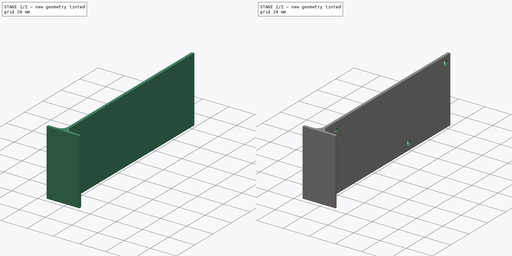
[diagram: build sequence overview — one tinted view per stage of 2, left to right]
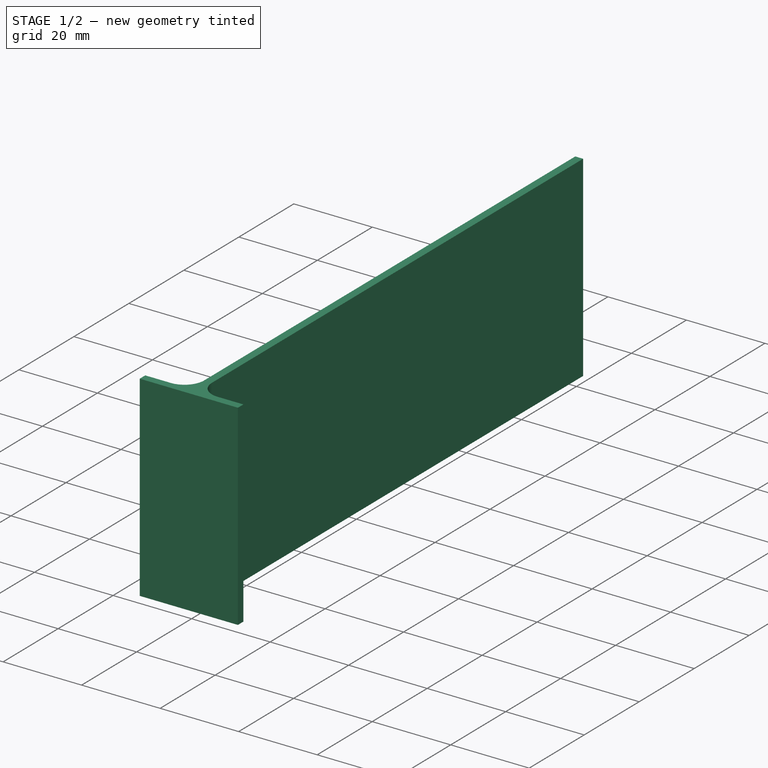
[diagram: stage 1 of 2 — iso view after this stage's code; geometry added in this stage tinted green]
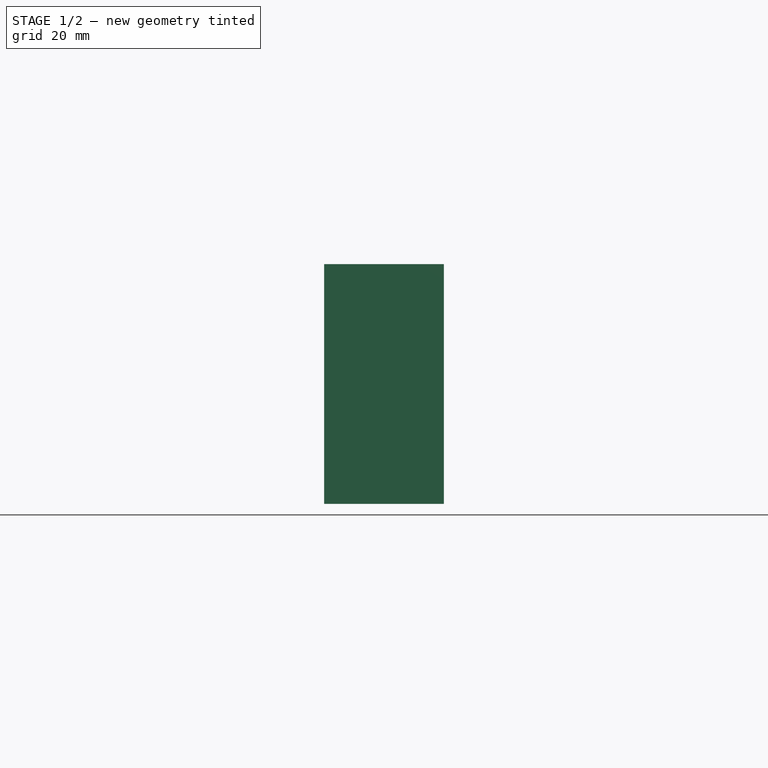
[diagram: stage 1 of 2 — front view after this stage's code; geometry added in this stage tinted green]
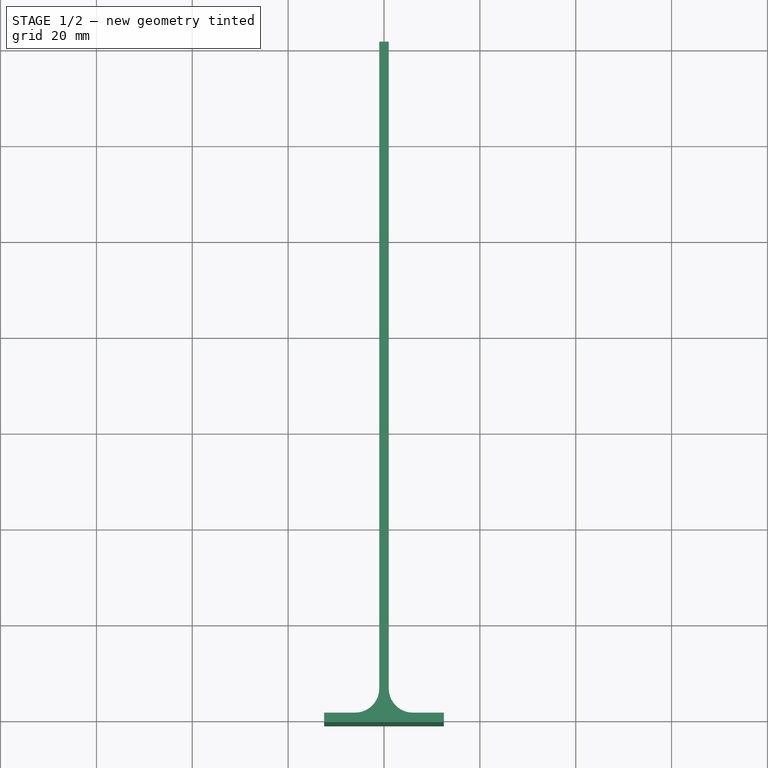
[diagram: stage 1 of 2 — top view after this stage's code; geometry added in this stage tinted green]
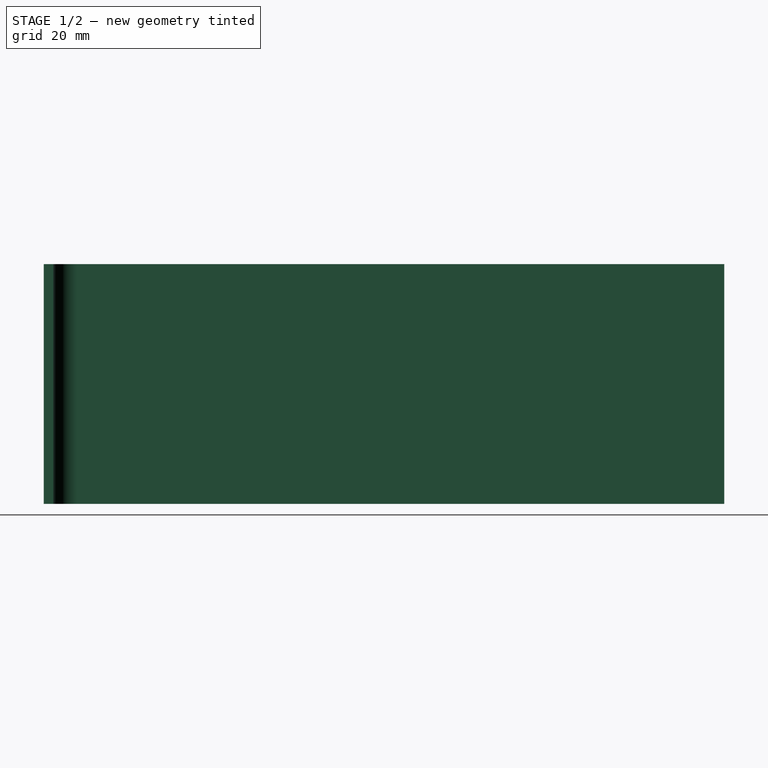
[diagram: stage 1 of 2 — right view after this stage's code; geometry added in this stage tinted green]
FCSTD DOCUMENT  (FreeCAD 2022.111R30764 (Git))
Label: door opener beam sensor stand
License: All rights reserved
LicenseURL: http://en.wikipedia.org/wiki/All_rights_reserved
objects: Sketcher::SketchObject×2, PartDesign::Fillet×2, PartDesign::Pad×1, PartDesign::Pocket×1, PartDesign::Body×1
note: 15 computed .brp shape members not serialized (recipe doc carries the construction recipe); baked Part::Feature solids carry a one-line shape summary decoded from their .brp

FEATURE [Sketcher::SketchObject] Sketch
  FullyConstrained = true
  MapMode = 5
  Support = -> [XY_Plane]
  TreeRank = 11
  sketch-geometry (8):
    g0: LineSegment StartX=-12.5 StartY=1 StartZ=0 EndX=-12.5 EndY=-1 EndZ=0
    g1: LineSegment StartX=-12.5 StartY=-1 StartZ=0 EndX=12.5 EndY=-1 EndZ=0
    g2: LineSegment StartX=12.5 StartY=-1 StartZ=0 EndX=12.5 EndY=1 EndZ=0
    g3: LineSegment StartX=12.5 StartY=1 StartZ=0 EndX=1 EndY=1 EndZ=0
    g4: LineSegment StartX=1 StartY=1 StartZ=0 EndX=1 EndY=141 EndZ=0
    g5: LineSegment StartX=1 StartY=141 StartZ=0 EndX=-1 EndY=141 EndZ=0
    g6: LineSegment StartX=-1 StartY=141 StartZ=0 EndX=-1 EndY=1 EndZ=0
    g7: LineSegment StartX=-1 StartY=1 StartZ=0 EndX=-12.5 EndY=1 EndZ=0
  constraints (21):
    c: Coincident(g0,g1)
    c: Horizontal(g1)
    c: Coincident(g1,g2)
    c: Vertical(g2)
    c: Coincident(g2,g3)
    c: Horizontal(g3)
    c: Coincident(g3,g4)
    c: Vertical(g4)
    c: Coincident(g4,g5)
    c: Coincident(g5,g6)
    c: Vertical(g6)
    c: Coincident(g6,g7)
    c: Coincident(g7,g0)
    c: Horizontal(g7)
    c: Symmetric(g5,g4,g-2)
    c: Symmetric(g0,g2,g-2)
    c: Symmetric(g0,g0,g-1)
    c: DistanceY(g0,g0) = 2
    c: DistanceX(g5,g5) = 2
    c: DistanceX(g1,g1) = 25
    c: DistanceY(g6,g6) = 140
FEATURE [PartDesign::Pad] Pad
  AddSubType = 0
  AlongSketchNormal = false
  CheckUpToFaceLimits = true
  ClaimChildren = false
  Direction = (0,0,1)
  Fit = 0
  FitJoin = 0
  InnerFit = 0
  InnerFitJoin = 0
  InnerTaperAngle = 0
  InnerTaperAngleRev = 0
  Length = 50
  Length2 = 100
  Linearize = true
  Midplane = true
  NewSolid = false
  Profile = -> Sketch
  Suppress = false
  TreeRank = 12
  Type = 0
  _ProfileBasedVersion = 1
FEATURE [PartDesign::Fillet] Fillet
  AddSubType = 0
  Base = -> Pad [Edge20,Edge11]
  BaseFeature = -> Pad
  NewSolid = false
  Radius = 5
  SupportTransform = false
  Suppress = false
  TreeRank = 13
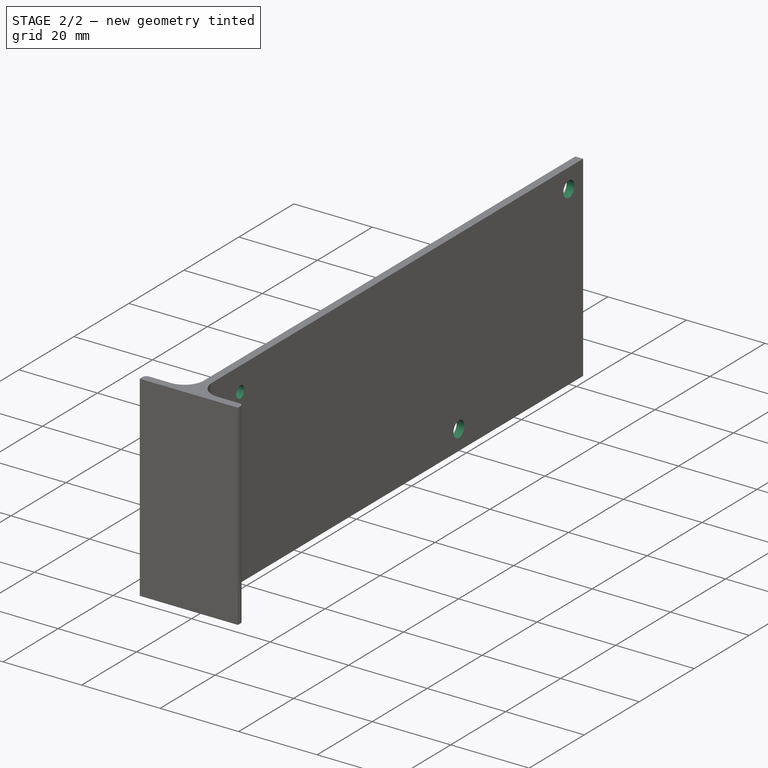
[diagram: stage 2 of 2 — iso view after this stage's code; geometry added in this stage tinted green]
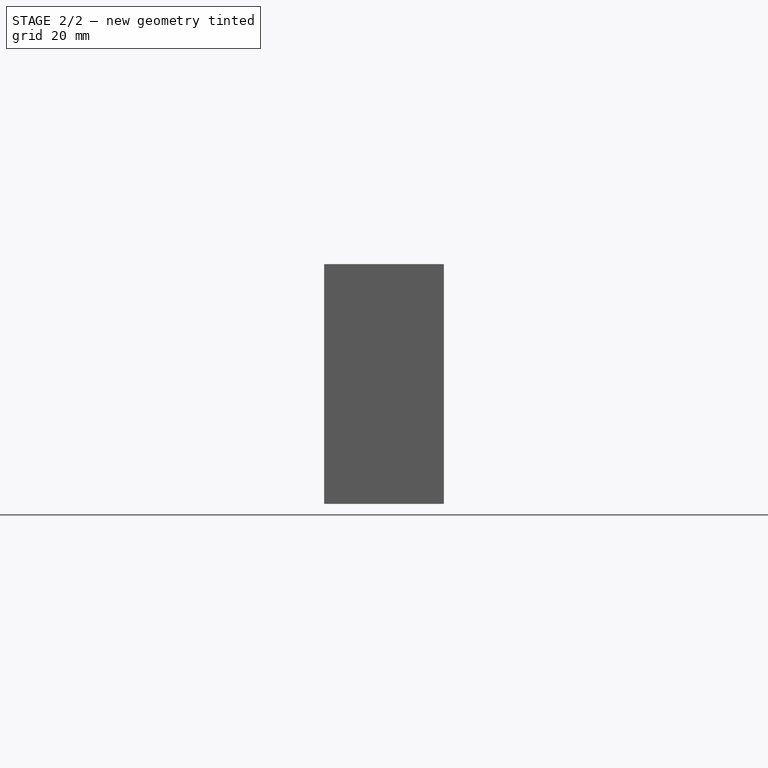
[diagram: stage 2 of 2 — front view after this stage's code; geometry added in this stage tinted green]
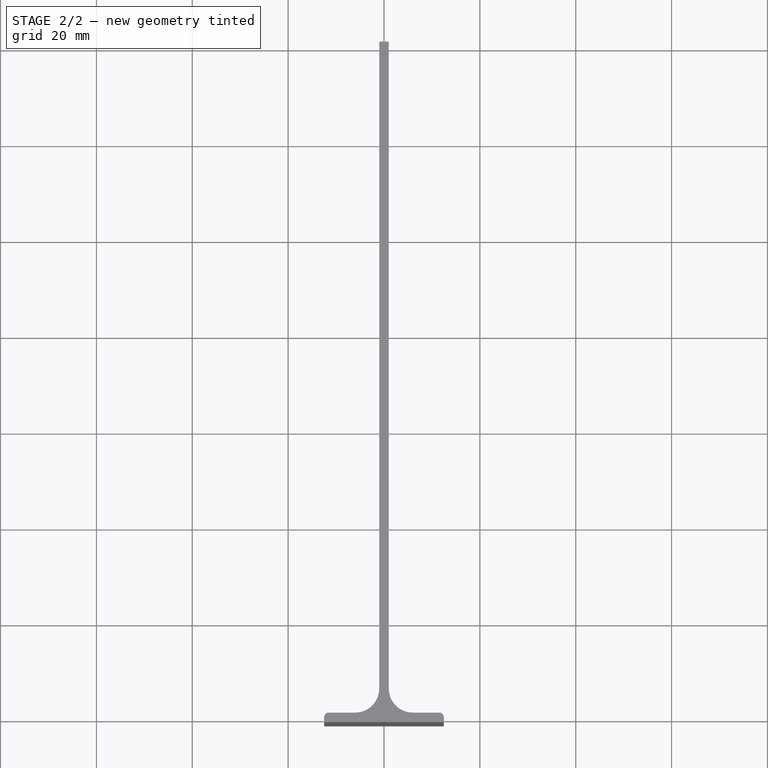
[diagram: stage 2 of 2 — top view after this stage's code; geometry added in this stage tinted green]
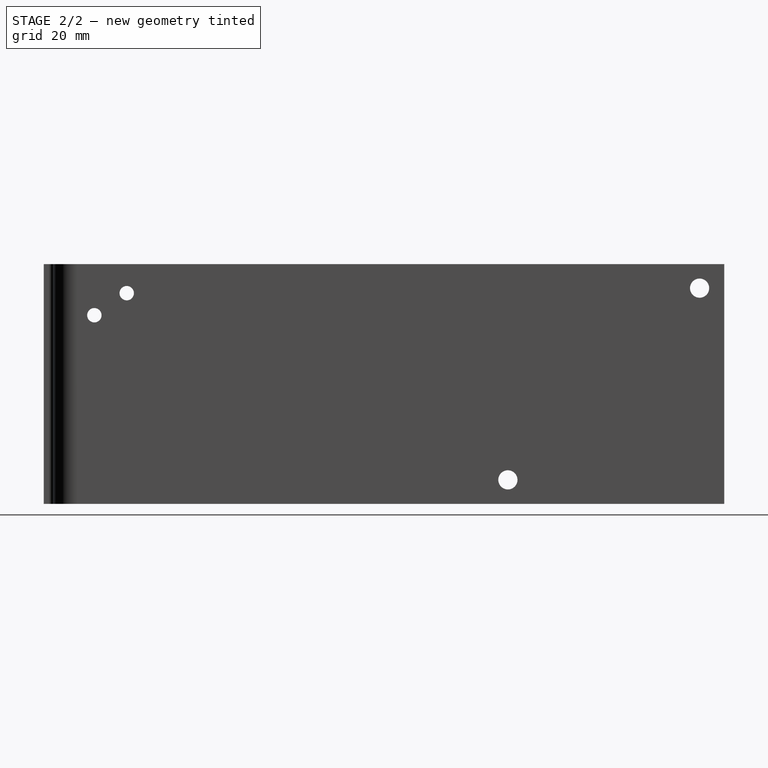
[diagram: stage 2 of 2 — right view after this stage's code; geometry added in this stage tinted green]
FEATURE [Sketcher::SketchObject] Sketch001
  FullyConstrained = false
  MapMode = 5
  Placement = pos=(0,0,0) rot=(0.57735,0.57735,0.57735;2.0944rad)
  Support = -> [YZ_Plane]
  TreeRank = 14
  sketch-geometry (5):
    g0: Circle CenterX=135.848 CenterY=20 CenterZ=0 NormalX=0 NormalY=0 NormalZ=1 AngleXU=0 Radius=2
    g1: Circle CenterX=95.848 CenterY=-20 CenterZ=0 NormalX=0 NormalY=0 NormalZ=1 AngleXU=0 Radius=2
    g2: GeomPoint [constr] X=115.848 Y=0 Z=0
    g3: Circle CenterX=9.56741 CenterY=14.3462 CenterZ=0 NormalX=0 NormalY=0 NormalZ=1 AngleXU=0 Radius=1.5
    g4: Circle CenterX=16.3227 CenterY=18.952 CenterZ=0 NormalX=0 NormalY=0 NormalZ=1 AngleXU=0 Radius=1.5
  constraints (8):
    c: Diameter(g0) = 4
    c: PointOnObject(g2,g-1)
    c: Symmetric(g1,g0,g2)
    c: DistanceY(g1,g0) = 40
    c: DistanceX(g1,g0) = 40
    c: Equal(g0,g1)
    c: Equal(g4,g3)
    c: Diameter(g4) = 3
FEATURE [PartDesign::Pocket] Pocket
  AddSubType = 1
  BaseFeature = -> Fillet
  CheckUpToFaceLimits = true
  ClaimChildren = false
  Fit = 0
  FitJoin = 0
  InnerFit = 0
  InnerFitJoin = 0
  InnerTaperAngle = 0
  InnerTaperAngleRev = 0
  Length = 5
  Length2 = 100
  Linearize = true
  Midplane = true
  NewSolid = false
  Profile = -> Sketch001
  Suppress = false
  TreeRank = 15
  Type = 1
  _ProfileBasedVersion = 1
  _Version = 1
FEATURE [PartDesign::Fillet] Fillet001
  AddSubType = 0
  Base = -> Pocket [Edge32,Edge3]
  BaseFeature = -> Pocket
  NewSolid = false
  Radius = 1
  SupportTransform = false
  Suppress = false
  TreeRank = 16
FEATURE [PartDesign::Body] Body
  AutoGroupSolids = false
  ExportMode = 0
  Group = -> [Sketch,Pad,Fillet,Sketch001,Pocket,Fillet001]
  Origin = -> Origin
  Placement = pos=(0,0,0) rot=(0,1,0;4.71239rad)
  Tip = -> Fillet001
  TreeRank = 10
  _ExportChildren = -> [Pad,Fillet,Pocket,Fillet001]
  _GroupVersion = 1
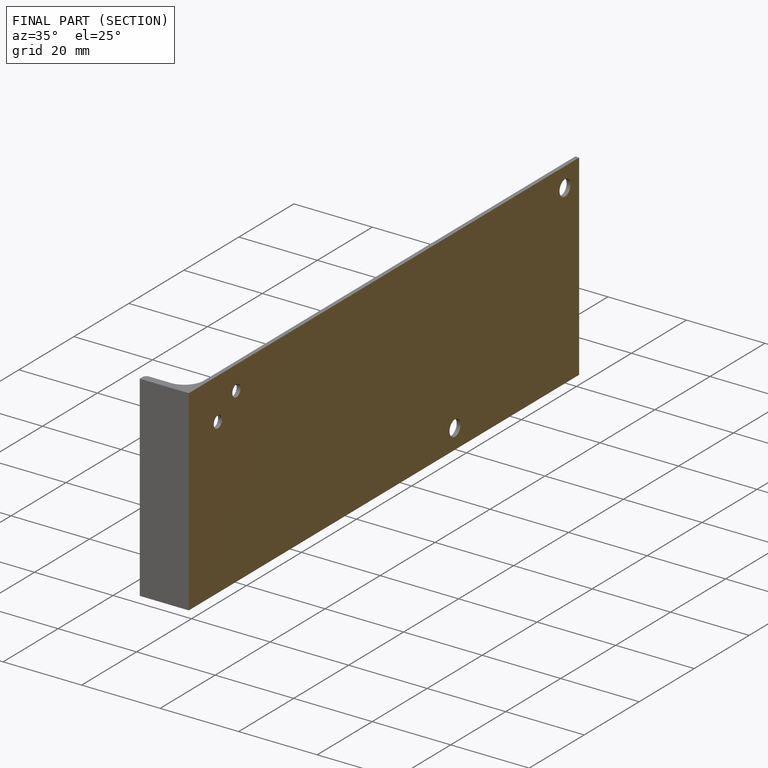
[diagram: finished part — half-section view (interior)]
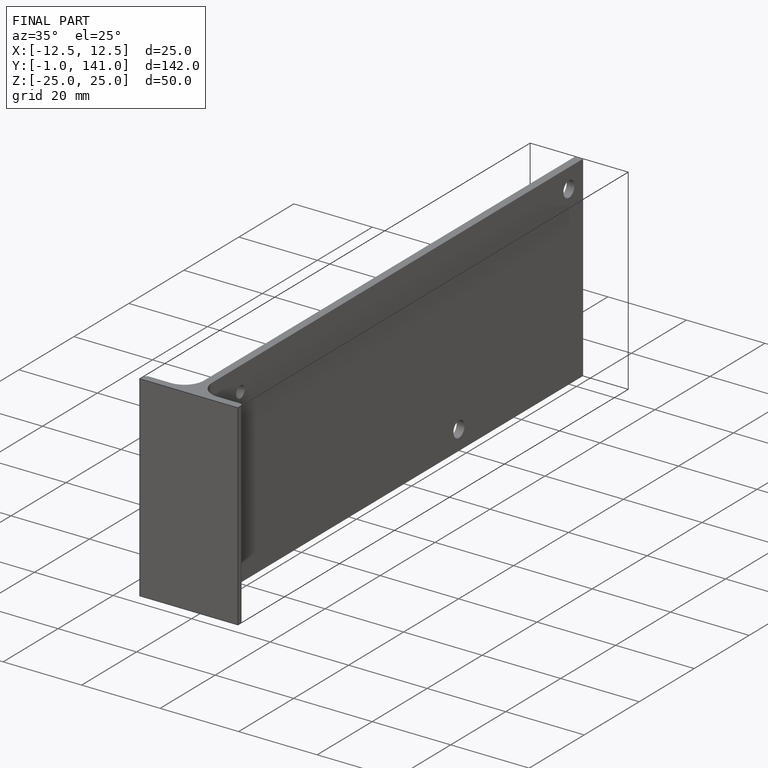
[diagram: finished part — iso view with bounding-box wireframe]
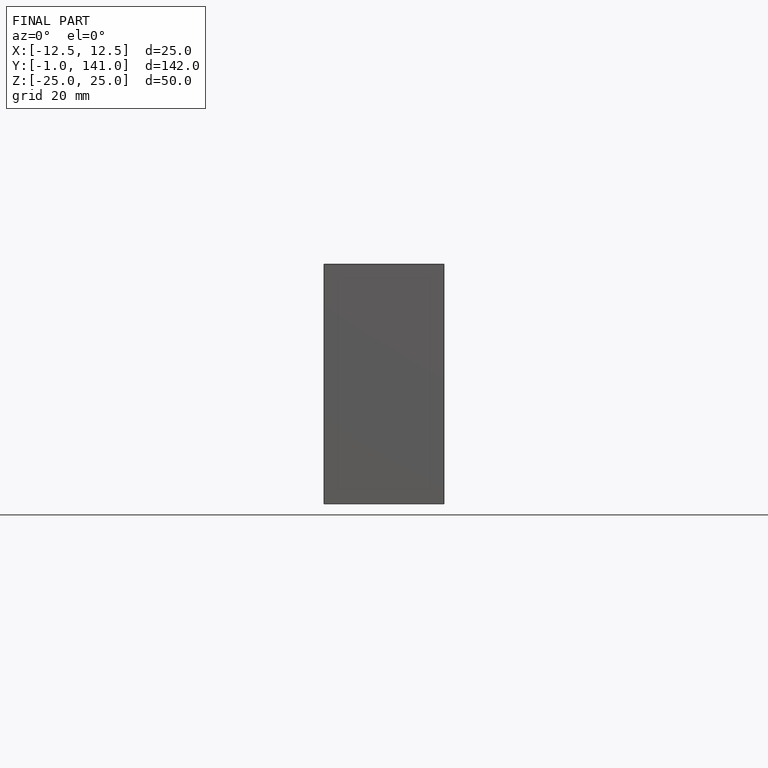
[diagram: finished part — front view with bounding-box wireframe]
